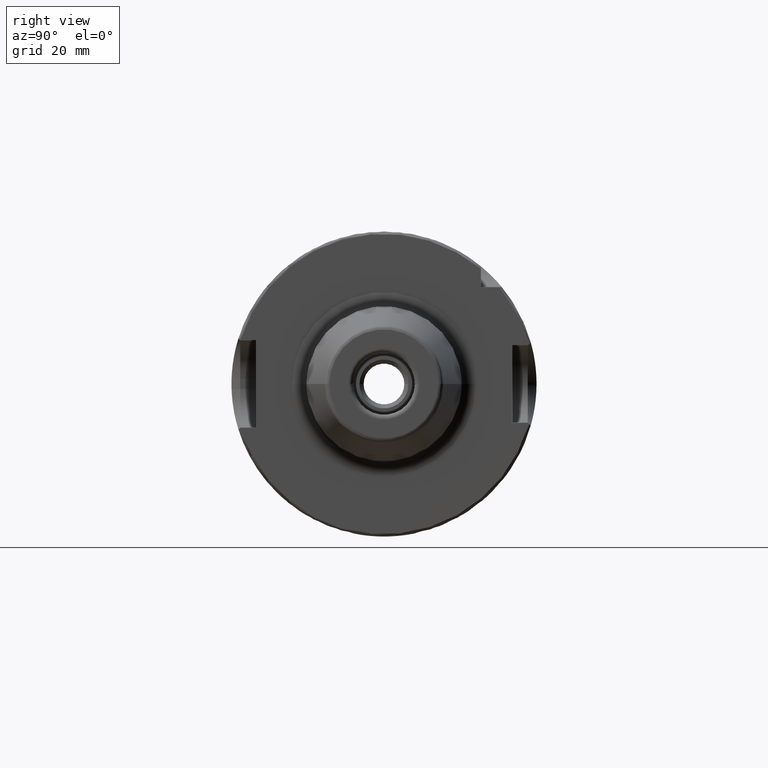
[diagram: clean part render]
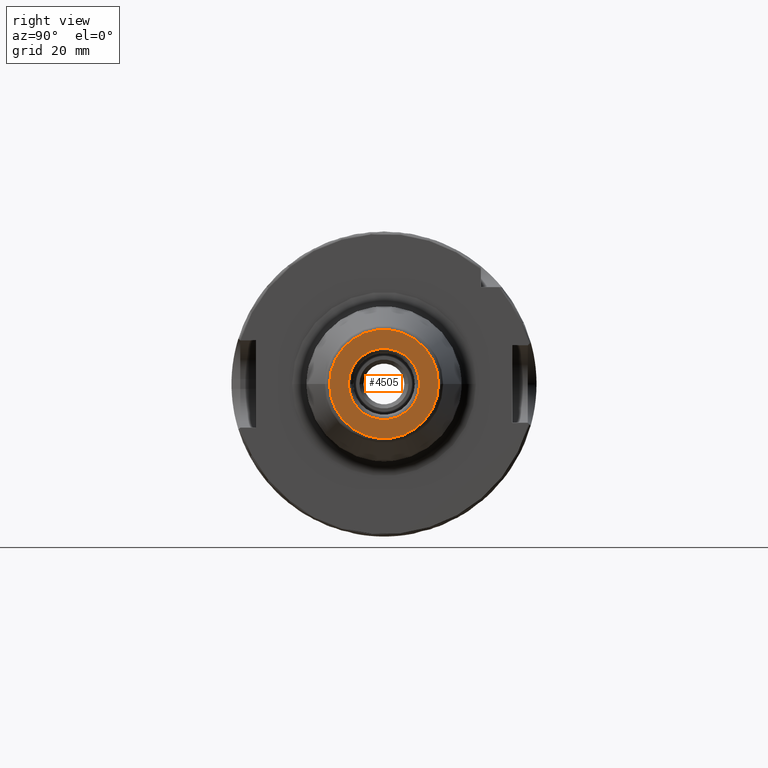
[diagram: same view with one face highlighted and labeled with its STEP entity id]
A machine part, right view. The second image highlights one B-rep face of the part: STEP entity #4505.
In plain terms, the highlighted planar face has unit normal (1, 0, 0).
Its self-contained STEP definition (entity closure, byte-faithful):
#1101=CARTESIAN_POINT('',(3.543E0,0.E0,0.E0));
#1102=DIRECTION('',(1.E0,0.E0,0.E0));
#1103=DIRECTION('',(0.E0,-1.E0,-6.156139161882E-9));
#1104=AXIS2_PLACEMENT_3D('',#1101,#1102,#1103);
#1106=CARTESIAN_POINT('',(3.543E0,0.E0,0.E0));
#1107=DIRECTION('',(1.E0,0.E0,0.E0));
#1108=DIRECTION('',(0.E0,1.E0,6.156139950480E-9));
#1109=AXIS2_PLACEMENT_3D('',#1106,#1107,#1108);
#1111=CARTESIAN_POINT('',(3.543E0,0.E0,0.E0));
#1112=DIRECTION('',(-1.E0,0.E0,0.E0));
#1113=DIRECTION('',(0.E0,-1.E0,-1.016758738617E-7));
#1114=AXIS2_PLACEMENT_3D('',#1111,#1112,#1113);
#1116=CARTESIAN_POINT('',(3.543E0,0.E0,0.E0));
#1117=DIRECTION('',(-1.E0,0.E0,0.E0));
#1118=DIRECTION('',(0.E0,1.E0,1.016758759597E-7));
#1119=AXIS2_PLACEMENT_3D('',#1116,#1117,#1118);
#3250=CARTESIAN_POINT('',(3.543E0,-4.433663892728E-1,-2.729425192064E-9));
#3251=CARTESIAN_POINT('',(3.543E0,4.433663892728E-1,2.729425531556E-9));
#3252=VERTEX_POINT('',#3250);
#3253=VERTEX_POINT('',#3251);
#3262=CARTESIAN_POINT('',(3.543E0,-2.892598183049E-1,-2.941074479923E-8));
#3263=CARTESIAN_POINT('',(3.543E0,2.892598183049E-1,2.941074496311E-8));
#3264=VERTEX_POINT('',#3262);
#3265=VERTEX_POINT('',#3263);
#4489=CARTESIAN_POINT('',(3.543E0,0.E0,0.E0));
#4490=DIRECTION('',(1.E0,0.E0,0.E0));
#4491=DIRECTION('',(0.E0,-1.E0,0.E0));
#4492=AXIS2_PLACEMENT_3D('',#4489,#4490,#4491);
#4493=PLANE('',#4492);
#4495=ORIENTED_EDGE('',*,*,#4494,.F.);
#4497=ORIENTED_EDGE('',*,*,#4496,.F.);
#4498=EDGE_LOOP('',(#4495,#4497));
#4499=FACE_OUTER_BOUND('',#4498,.F.);
#4500=ORIENTED_EDGE('',*,*,#4479,.F.);
#4502=ORIENTED_EDGE('',*,*,#4501,.F.);
#4503=EDGE_LOOP('',(#4500,#4502));
#4504=FACE_BOUND('',#4503,.F.);
#4505=ADVANCED_FACE('',(#4499,#4504),#4493,.T.);
#1105=CIRCLE('',#1104,4.433663892728E-1);
#1110=CIRCLE('',#1109,4.433663892728E-1);
#1115=CIRCLE('',#1114,2.892598183049E-1);
#1120=CIRCLE('',#1119,2.892598183049E-1);
#4479=EDGE_CURVE('',#3264,#3265,#1115,.T.);
#4494=EDGE_CURVE('',#3252,#3253,#1105,.T.);
#4496=EDGE_CURVE('',#3253,#3252,#1110,.T.);
#4501=EDGE_CURVE('',#3265,#3264,#1120,.T.);